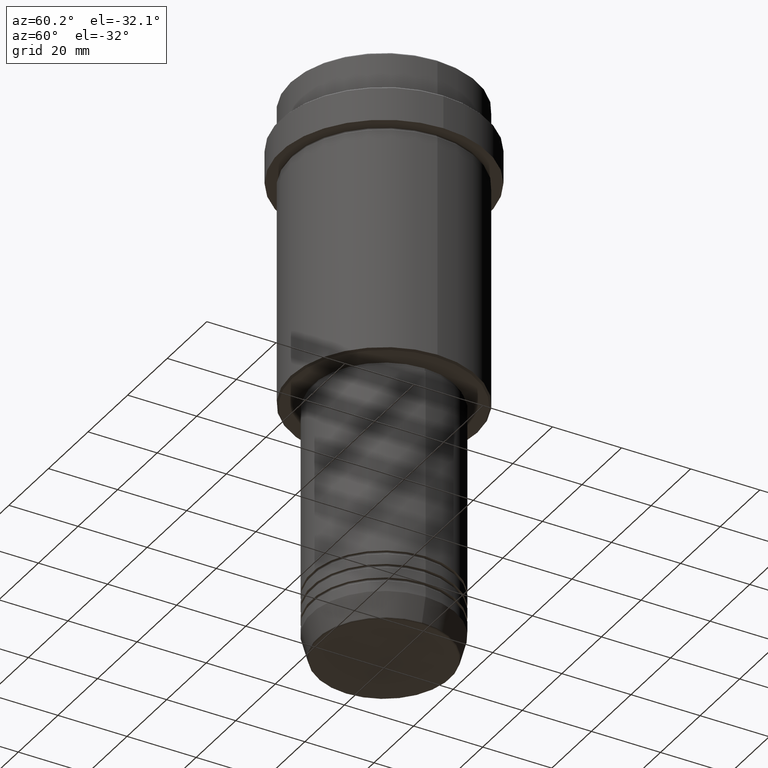
[diagram: clean part render]
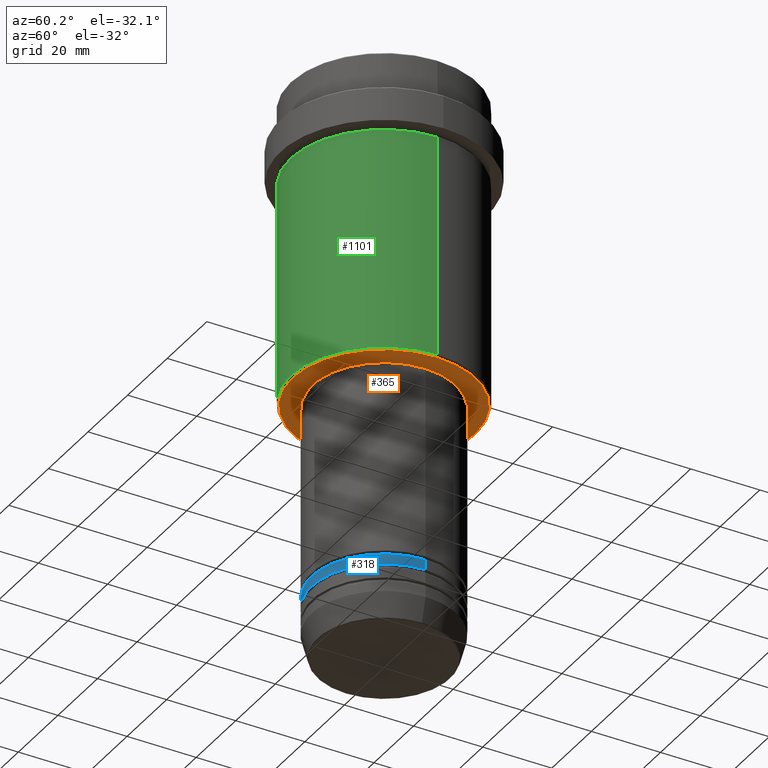
[diagram: same view with three faces highlighted in distinct colors, each labeled with its STEP entity id]
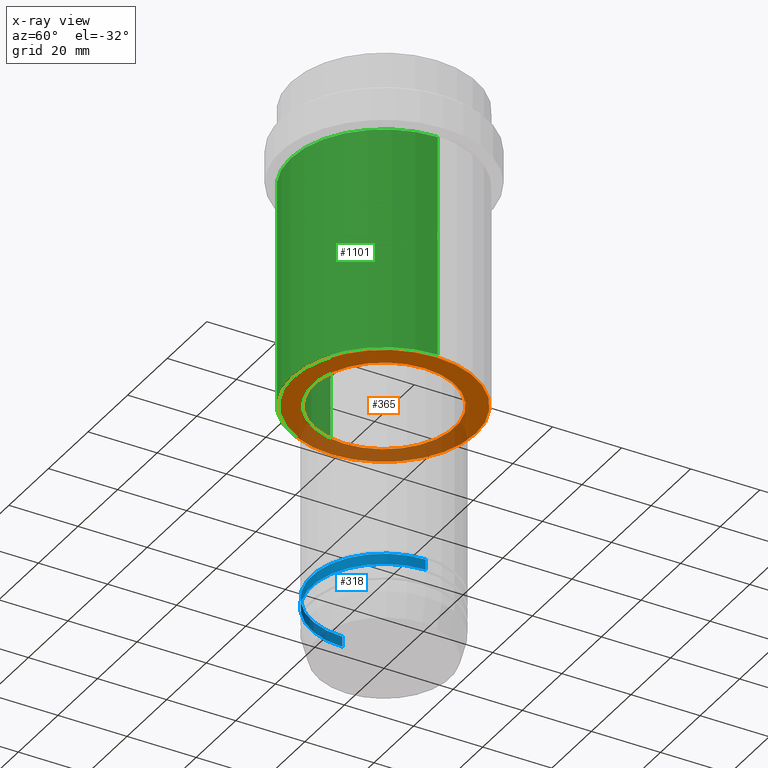
[diagram: x-ray of the same camera — body ghosted, the three highlighted faces saturated]
A machine part, auxiliary view with three faces highlighted in distinct colors.
The next image is the same camera in x-ray (body ghosted, the three faces saturated) — at least one of them is partly hidden behind the body in this view.
Their STEP definitions:

[orange] entity #365 — the highlighted planar face has unit normal (0, 0, -1).
#48 = CARTESIAN_POINT ( 'NONE',  ( 0.000000000000000000, 0.000000000000000000, -88.00000000000001421 ) ) ;
#76 = CIRCLE ( 'NONE', #849, 20.50000000000000000 ) ;
#81 = CARTESIAN_POINT ( 'NONE',  ( -20.50000000000000000, 2.510525938252074481E-15, -88.00000000000001421 ) ) ;
#106 = DIRECTION ( 'NONE',  ( -0.000000000000000000, -0.000000000000000000, 1.000000000000000000 ) ) ;
#119 = AXIS2_PLACEMENT_3D ( 'NONE', #570, #1108, #896 ) ;
#149 = FACE_BOUND ( 'NONE', #1150, .T. ) ;
#178 = ORIENTED_EDGE ( 'NONE', *, *, #948, .T. ) ;
#254 = DIRECTION ( 'NONE',  ( 1.000000000000000000, 0.000000000000000000, 0.000000000000000000 ) ) ;
#284 = CARTESIAN_POINT ( 'NONE',  ( 0.000000000000000000, 0.000000000000000000, -88.00000000000001421 ) ) ;
#329 = CARTESIAN_POINT ( 'NONE',  ( 0.000000000000000000, 0.000000000000000000, -88.00000000000001421 ) ) ;
#365 = ADVANCED_FACE ( 'NONE', ( #1317, #149 ), #1332, .T. ) ;
#403 = DIRECTION ( 'NONE',  ( -0.000000000000000000, -0.000000000000000000, 1.000000000000000000 ) ) ;
#431 = DIRECTION ( 'NONE',  ( -1.000000000000000000, 0.000000000000000000, 0.000000000000000000 ) ) ;
#447 = AXIS2_PLACEMENT_3D ( 'NONE', #1084, #106, #626 ) ;
#494 = CARTESIAN_POINT ( 'NONE',  ( 26.49999999999995381, 0.000000000000000000, -88.00000000000001421 ) ) ;
#499 = DIRECTION ( 'NONE',  ( 0.000000000000000000, 0.000000000000000000, -1.000000000000000000 ) ) ;
#570 = CARTESIAN_POINT ( 'NONE',  ( 0.000000000000000000, 27.00000000000000000, -88.00000000000001421 ) ) ;
#572 = EDGE_LOOP ( 'NONE', ( #1292, #178 ) ) ;
#626 = DIRECTION ( 'NONE',  ( 1.000000000000000000, 0.000000000000000000, 0.000000000000000000 ) ) ;
#642 = CIRCLE ( 'NONE', #708, 26.49999999999995381 ) ;
#685 = ORIENTED_EDGE ( 'NONE', *, *, #1017, .T. ) ;
#698 = VERTEX_POINT ( 'NONE', #769 ) ;
#706 = EDGE_CURVE ( 'NONE', #1414, #813, #1191, .T. ) ;
#708 = AXIS2_PLACEMENT_3D ( 'NONE', #284, #499, #1042 ) ;
#769 = CARTESIAN_POINT ( 'NONE',  ( -26.49999999999995381, 3.275930187719166791E-15, -88.00000000000001421 ) ) ;
#805 = CIRCLE ( 'NONE', #1260, 26.49999999999995381 ) ;
#813 = VERTEX_POINT ( 'NONE', #1341 ) ;
#849 = AXIS2_PLACEMENT_3D ( 'NONE', #48, #403, #254 ) ;
#896 = DIRECTION ( 'NONE',  ( -1.000000000000000000, 0.000000000000000000, -0.000000000000000000 ) ) ;
#901 = ORIENTED_EDGE ( 'NONE', *, *, #706, .T. ) ;
#948 = EDGE_CURVE ( 'NONE', #698, #979, #642, .T. ) ;
#979 = VERTEX_POINT ( 'NONE', #494 ) ;
#1017 = EDGE_CURVE ( 'NONE', #813, #1414, #76, .T. ) ;
#1042 = DIRECTION ( 'NONE',  ( -1.000000000000000000, 0.000000000000000000, 0.000000000000000000 ) ) ;
#1084 = CARTESIAN_POINT ( 'NONE',  ( 0.000000000000000000, 0.000000000000000000, -88.00000000000001421 ) ) ;
#1108 = DIRECTION ( 'NONE',  ( 0.000000000000000000, 0.000000000000000000, -1.000000000000000000 ) ) ;
#1150 = EDGE_LOOP ( 'NONE', ( #685, #901 ) ) ;
#1191 = CIRCLE ( 'NONE', #447, 20.50000000000000000 ) ;
#1260 = AXIS2_PLACEMENT_3D ( 'NONE', #329, #1405, #431 ) ;
#1265 = EDGE_CURVE ( 'NONE', #979, #698, #805, .T. ) ;
#1292 = ORIENTED_EDGE ( 'NONE', *, *, #1265, .T. ) ;
#1317 = FACE_OUTER_BOUND ( 'NONE', #572, .T. ) ;
#1332 = PLANE ( 'NONE',  #119 ) ;
#1341 = CARTESIAN_POINT ( 'NONE',  ( 20.50000000000000000, 0.000000000000000000, -88.00000000000001421 ) ) ;
#1405 = DIRECTION ( 'NONE',  ( 0.000000000000000000, 0.000000000000000000, -1.000000000000000000 ) ) ;
#1414 = VERTEX_POINT ( 'NONE', #81 ) ;

[blue] entity #318 — the highlighted cylindrical surface (partial cylindrical patch) has radius 21 mm, axis along (-0, -0, 1).
#11 = AXIS2_PLACEMENT_3D ( 'NONE', #500, #394, #1288 ) ;
#85 = CARTESIAN_POINT ( 'NONE',  ( 0.000000000000000000, 0.000000000000000000, 0.000000000000000000 ) ) ;
#86 = CARTESIAN_POINT ( 'NONE',  ( -21.00000000000000000, 2.571758278209441661E-15, 0.000000000000000000 ) ) ;
#130 = CARTESIAN_POINT ( 'NONE',  ( -21.00000000000000000, 2.571758278209441661E-15, -144.9999999999999147 ) ) ;
#132 = LINE ( 'NONE', #574, #915 ) ;
#139 = AXIS2_PLACEMENT_3D ( 'NONE', #613, #1151, #608 ) ;
#173 = DIRECTION ( 'NONE',  ( 1.000000000000000000, 0.000000000000000000, 0.000000000000000000 ) ) ;
#236 = EDGE_CURVE ( 'NONE', #750, #1314, #732, .T. ) ;
#318 = ADVANCED_FACE ( 'NONE', ( #433 ), #1261, .T. ) ;
#355 = VECTOR ( 'NONE', #1300, 1000.000000000000000 ) ;
#377 = CIRCLE ( 'NONE', #11, 21.00000000000000000 ) ;
#394 = DIRECTION ( 'NONE',  ( -0.000000000000000000, -0.000000000000000000, 1.000000000000000000 ) ) ;
#404 = EDGE_CURVE ( 'NONE', #467, #1314, #132, .T. ) ;
#408 = VERTEX_POINT ( 'NONE', #1117 ) ;
#415 = DIRECTION ( 'NONE',  ( -0.000000000000000000, -0.000000000000000000, 1.000000000000000000 ) ) ;
#433 = FACE_OUTER_BOUND ( 'NONE', #906, .T. ) ;
#467 = VERTEX_POINT ( 'NONE', #610 ) ;
#483 = ORIENTED_EDGE ( 'NONE', *, *, #1408, .T. ) ;
#500 = CARTESIAN_POINT ( 'NONE',  ( 0.000000000000000000, 0.000000000000000000, -147.9999999999999147 ) ) ;
#517 = LINE ( 'NONE', #86, #355 ) ;
#574 = CARTESIAN_POINT ( 'NONE',  ( 21.00000000000000000, 0.000000000000000000, 0.000000000000000000 ) ) ;
#608 = DIRECTION ( 'NONE',  ( 1.000000000000000000, 0.000000000000000000, 0.000000000000000000 ) ) ;
#610 = CARTESIAN_POINT ( 'NONE',  ( 21.00000000000000000, 0.000000000000000000, -147.9999999999999147 ) ) ;
#613 = CARTESIAN_POINT ( 'NONE',  ( 0.000000000000000000, 0.000000000000000000, -144.9999999999999147 ) ) ;
#732 = CIRCLE ( 'NONE', #139, 21.00000000000000000 ) ;
#750 = VERTEX_POINT ( 'NONE', #130 ) ;
#852 = CARTESIAN_POINT ( 'NONE',  ( 21.00000000000000000, 0.000000000000000000, -144.9999999999999147 ) ) ;
#906 = EDGE_LOOP ( 'NONE', ( #1211, #483, #1273, #946 ) ) ;
#915 = VECTOR ( 'NONE', #1005, 1000.000000000000000 ) ;
#946 = ORIENTED_EDGE ( 'NONE', *, *, #236, .F. ) ;
#1005 = DIRECTION ( 'NONE',  ( -0.000000000000000000, -0.000000000000000000, 1.000000000000000000 ) ) ;
#1117 = CARTESIAN_POINT ( 'NONE',  ( -21.00000000000000000, 2.571758278209441661E-15, -147.9999999999999147 ) ) ;
#1119 = EDGE_CURVE ( 'NONE', #408, #750, #517, .T. ) ;
#1151 = DIRECTION ( 'NONE',  ( -0.000000000000000000, -0.000000000000000000, 1.000000000000000000 ) ) ;
#1211 = ORIENTED_EDGE ( 'NONE', *, *, #1119, .F. ) ;
#1213 = AXIS2_PLACEMENT_3D ( 'NONE', #85, #415, #173 ) ;
#1261 = CYLINDRICAL_SURFACE ( 'NONE', #1213, 21.00000000000000000 ) ;
#1273 = ORIENTED_EDGE ( 'NONE', *, *, #404, .T. ) ;
#1288 = DIRECTION ( 'NONE',  ( 1.000000000000000000, 0.000000000000000000, 0.000000000000000000 ) ) ;
#1300 = DIRECTION ( 'NONE',  ( -0.000000000000000000, -0.000000000000000000, 1.000000000000000000 ) ) ;
#1314 = VERTEX_POINT ( 'NONE', #852 ) ;
#1408 = EDGE_CURVE ( 'NONE', #408, #467, #377, .T. ) ;

[green] entity #1101 — the highlighted cylindrical surface (partial cylindrical patch) has radius 27 mm, axis along (-0, -0, 1).
#10 = AXIS2_PLACEMENT_3D ( 'NONE', #207, #1390, #1159 ) ;
#50 = LINE ( 'NONE', #1161, #846 ) ;
#56 = DIRECTION ( 'NONE',  ( -0.000000000000000000, -0.000000000000000000, 1.000000000000000000 ) ) ;
#172 = ORIENTED_EDGE ( 'NONE', *, *, #973, .T. ) ;
#190 = AXIS2_PLACEMENT_3D ( 'NONE', #1098, #992, #971 ) ;
#207 = CARTESIAN_POINT ( 'NONE',  ( 0.000000000000000000, 0.000000000000000000, 0.000000000000000000 ) ) ;
#309 = DIRECTION ( 'NONE',  ( -0.000000000000000000, -0.000000000000000000, 1.000000000000000000 ) ) ;
#324 = LINE ( 'NONE', #1409, #969 ) ;
#371 = CARTESIAN_POINT ( 'NONE',  ( 0.000000000000000000, 0.000000000000000000, -87.49999999999995737 ) ) ;
#507 = DIRECTION ( 'NONE',  ( -1.000000000000000000, 0.000000000000000000, 0.000000000000000000 ) ) ;
#527 = EDGE_CURVE ( 'NONE', #644, #629, #50, .T. ) ;
#530 = ORIENTED_EDGE ( 'NONE', *, *, #1346, .F. ) ;
#545 = CARTESIAN_POINT ( 'NONE',  ( 26.99999999999999645, 0.000000000000000000, -87.49999999999995737 ) ) ;
#629 = VERTEX_POINT ( 'NONE', #1411 ) ;
#644 = VERTEX_POINT ( 'NONE', #545 ) ;
#713 = VERTEX_POINT ( 'NONE', #1384 ) ;
#794 = VERTEX_POINT ( 'NONE', #1122 ) ;
#818 = DIRECTION ( 'NONE',  ( -0.000000000000000000, -0.000000000000000000, 1.000000000000000000 ) ) ;
#846 = VECTOR ( 'NONE', #818, 1000.000000000000000 ) ;
#969 = VECTOR ( 'NONE', #309, 1000.000000000000000 ) ;
#971 = DIRECTION ( 'NONE',  ( 1.000000000000000000, 0.000000000000000000, 0.000000000000000000 ) ) ;
#973 = EDGE_CURVE ( 'NONE', #713, #644, #1193, .T. ) ;
#992 = DIRECTION ( 'NONE',  ( -0.000000000000000000, -0.000000000000000000, 1.000000000000000000 ) ) ;
#1003 = EDGE_LOOP ( 'NONE', ( #1128, #172, #1052, #530 ) ) ;
#1052 = ORIENTED_EDGE ( 'NONE', *, *, #527, .T. ) ;
#1058 = AXIS2_PLACEMENT_3D ( 'NONE', #371, #56, #507 ) ;
#1060 = CIRCLE ( 'NONE', #190, 26.99999999999999645 ) ;
#1098 = CARTESIAN_POINT ( 'NONE',  ( 0.000000000000000000, 0.000000000000000000, -23.00000000000000000 ) ) ;
#1101 = ADVANCED_FACE ( 'NONE', ( #1286 ), #1271, .T. ) ;
#1120 = EDGE_CURVE ( 'NONE', #713, #794, #324, .T. ) ;
#1122 = CARTESIAN_POINT ( 'NONE',  ( -26.99999999999999645, 3.306546357697853339E-15, -23.00000000000000000 ) ) ;
#1128 = ORIENTED_EDGE ( 'NONE', *, *, #1120, .F. ) ;
#1159 = DIRECTION ( 'NONE',  ( 1.000000000000000000, 0.000000000000000000, 0.000000000000000000 ) ) ;
#1161 = CARTESIAN_POINT ( 'NONE',  ( 26.99999999999999645, 0.000000000000000000, 0.000000000000000000 ) ) ;
#1193 = CIRCLE ( 'NONE', #1058, 26.99999999999999645 ) ;
#1271 = CYLINDRICAL_SURFACE ( 'NONE', #10, 26.99999999999999645 ) ;
#1286 = FACE_OUTER_BOUND ( 'NONE', #1003, .T. ) ;
#1346 = EDGE_CURVE ( 'NONE', #794, #629, #1060, .T. ) ;
#1384 = CARTESIAN_POINT ( 'NONE',  ( -26.99999999999999645, 3.306546357697853339E-15, -87.49999999999995737 ) ) ;
#1390 = DIRECTION ( 'NONE',  ( -0.000000000000000000, -0.000000000000000000, 1.000000000000000000 ) ) ;
#1409 = CARTESIAN_POINT ( 'NONE',  ( -26.99999999999999645, 3.306546357697853339E-15, 0.000000000000000000 ) ) ;
#1411 = CARTESIAN_POINT ( 'NONE',  ( 26.99999999999999645, 0.000000000000000000, -23.00000000000000000 ) ) ;